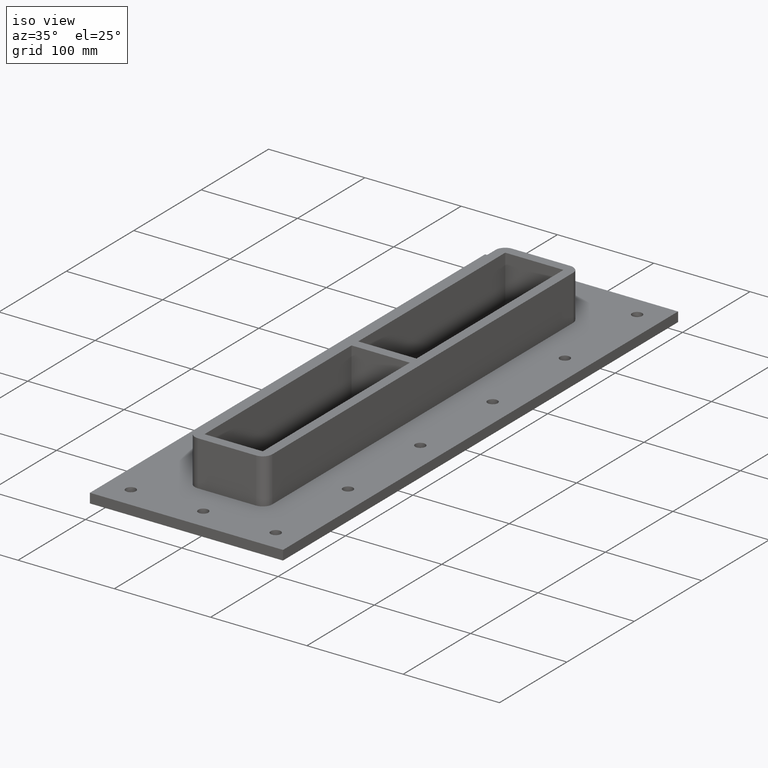
[diagram: clean part render]
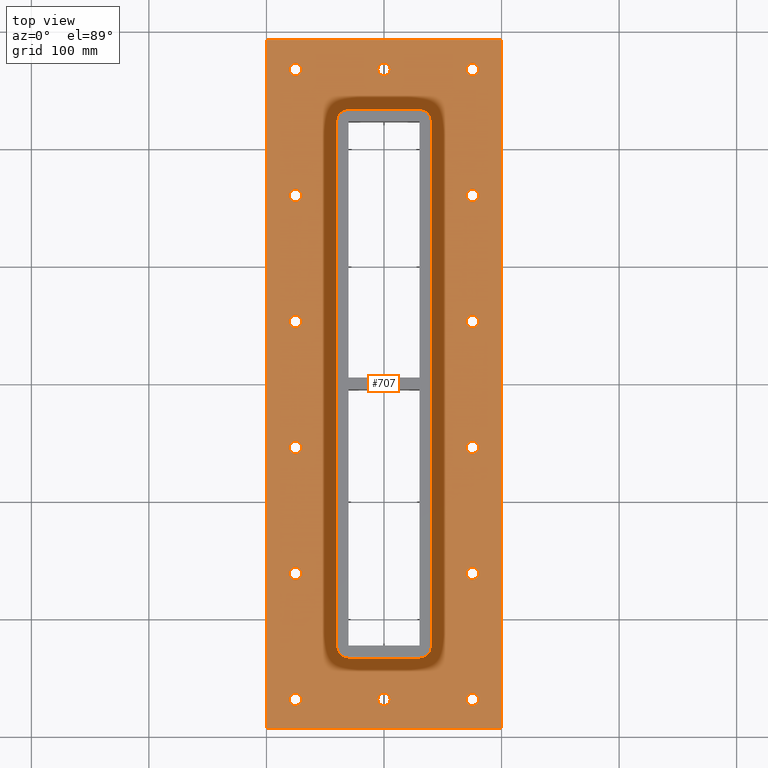
[diagram: tour spotlight — one face highlighted and labeled with its STEP entity id]
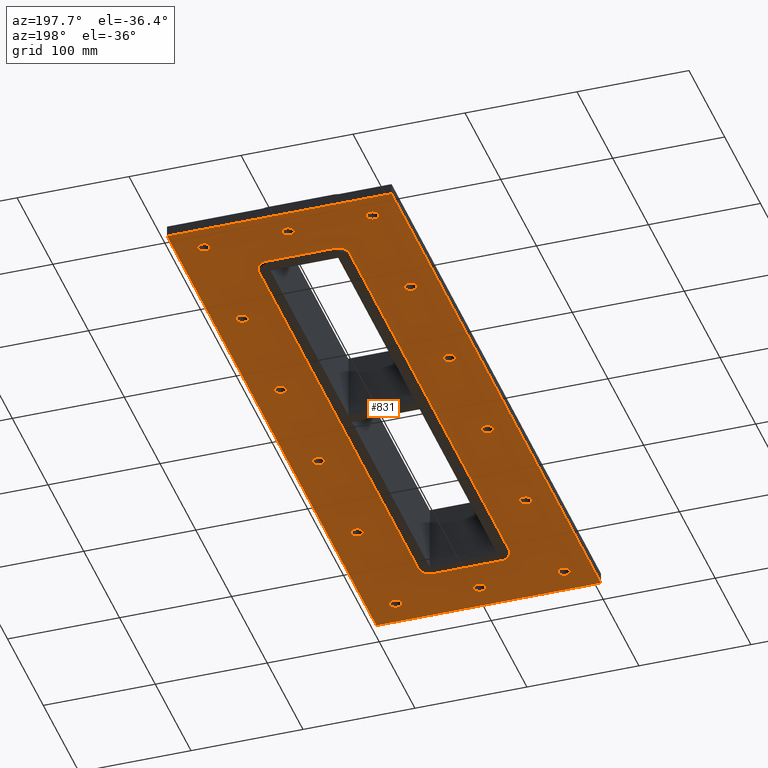
[diagram: tour spotlight — one face highlighted and labeled with its STEP entity id]
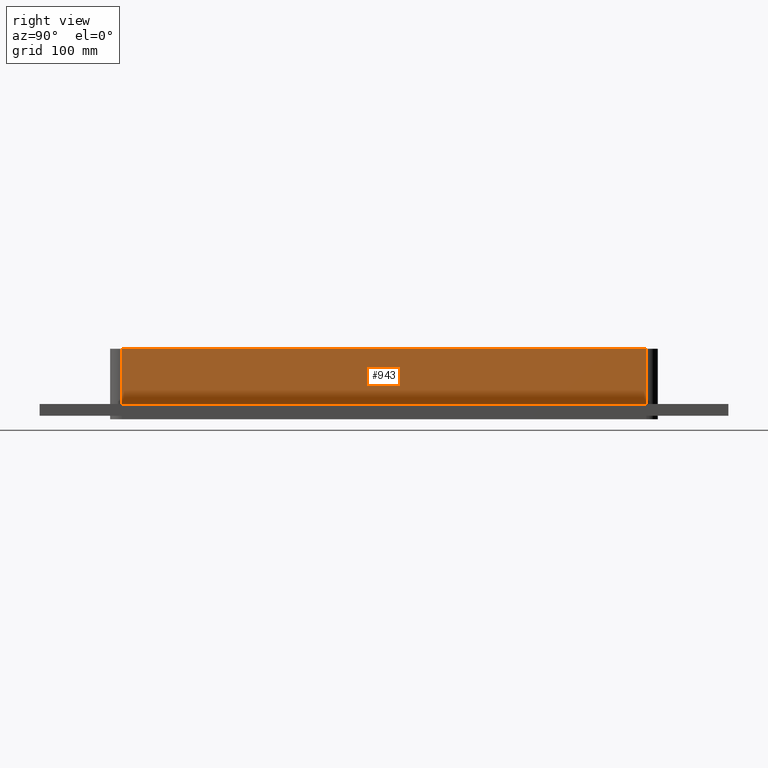
[diagram: tour spotlight — one face highlighted and labeled with its STEP entity id]
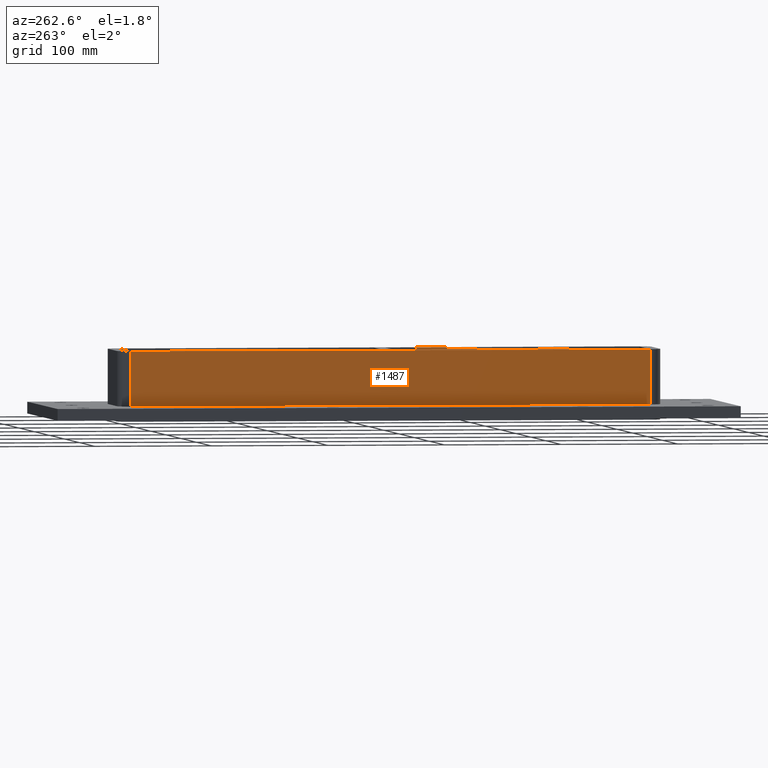
[diagram: tour spotlight — one face highlighted and labeled with its STEP entity id]
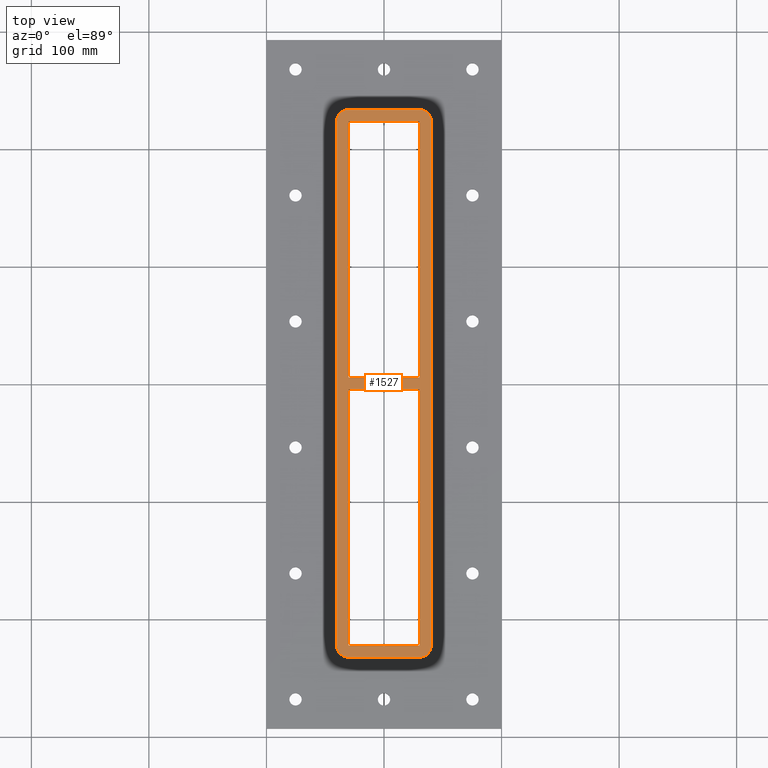
[diagram: tour spotlight — one face highlighted and labeled with its STEP entity id]
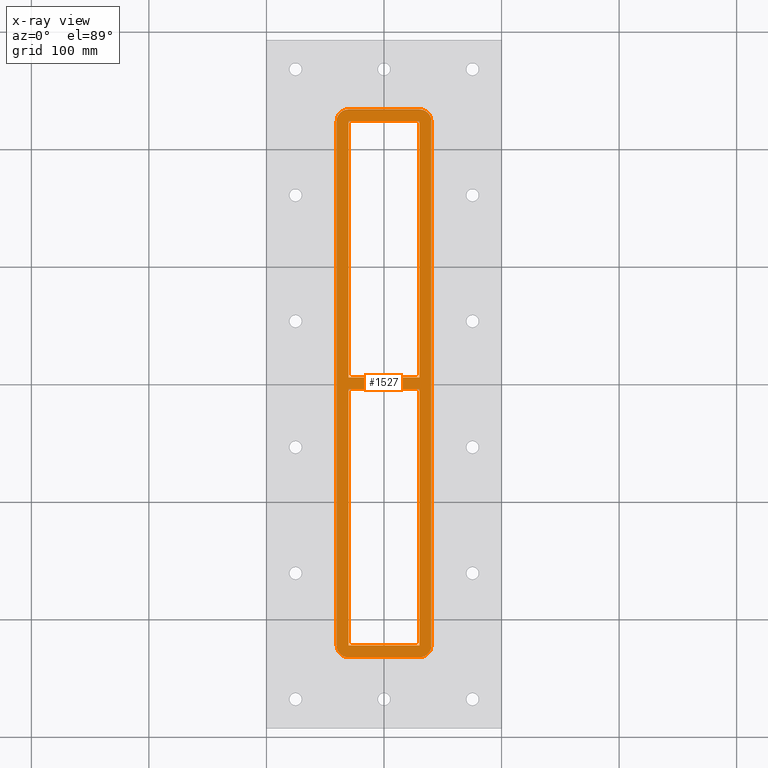
[diagram: x-ray of the same camera — body ghosted, this tour face saturated]
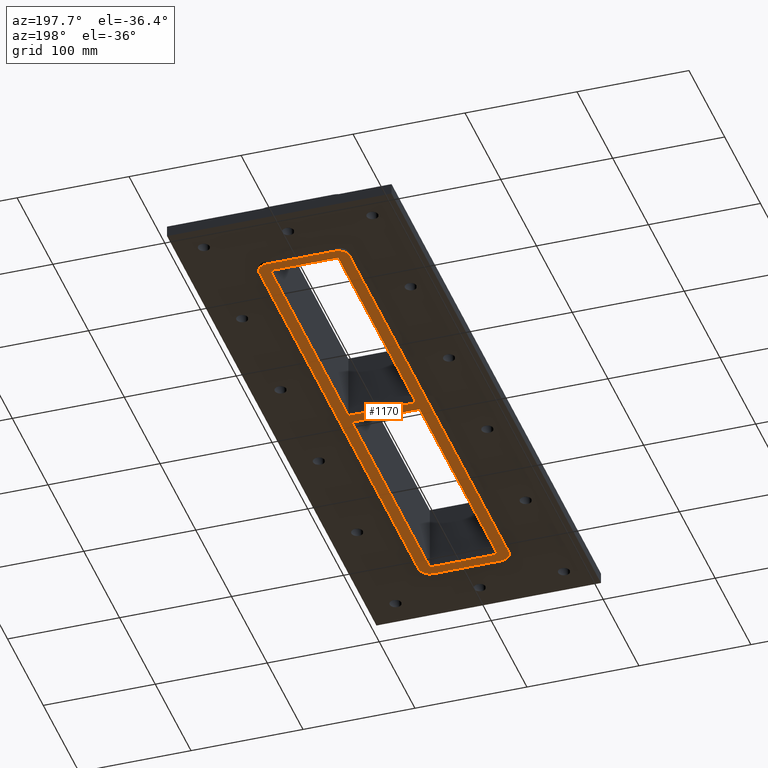
[diagram: tour spotlight — one face highlighted and labeled with its STEP entity id]
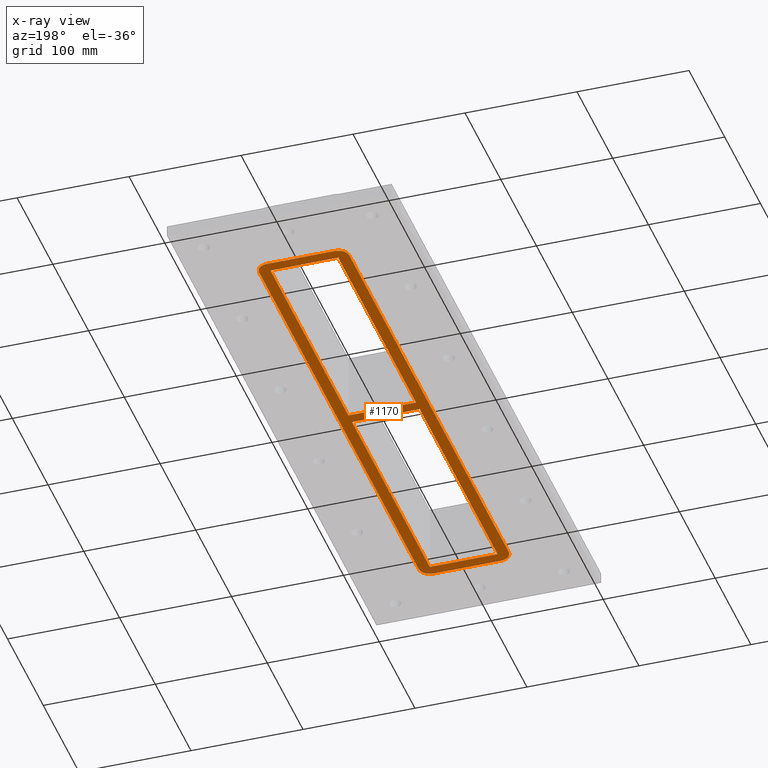
[diagram: x-ray of the same camera — body ghosted, this tour face saturated]
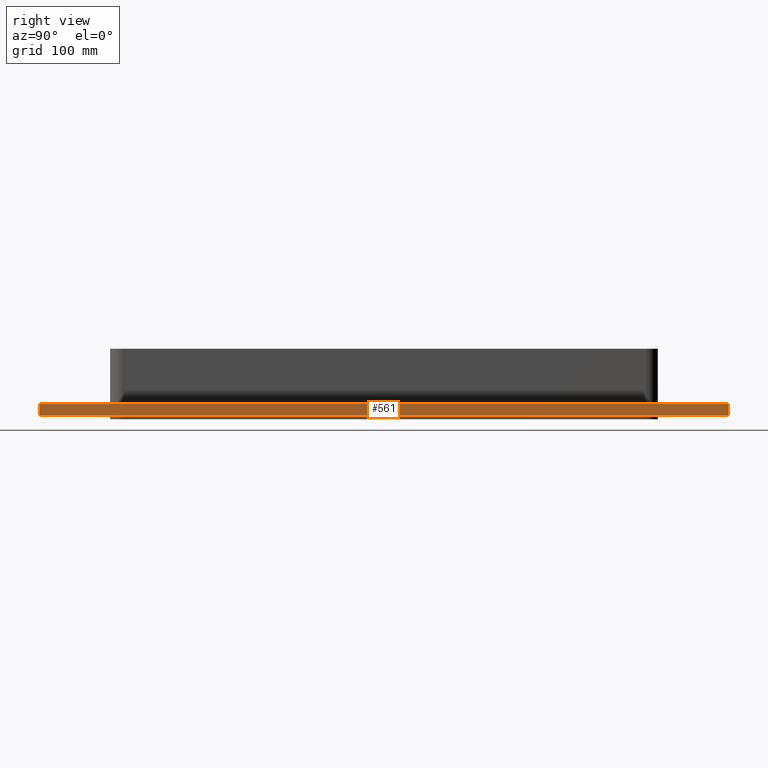
[diagram: tour spotlight — one face highlighted and labeled with its STEP entity id]
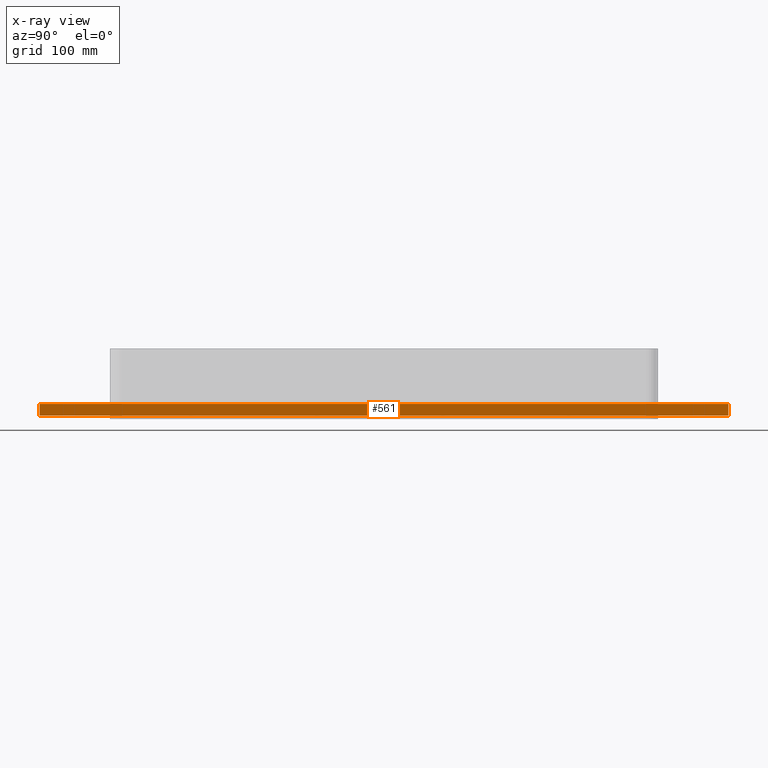
[diagram: x-ray of the same camera — body ghosted, this tour face saturated]
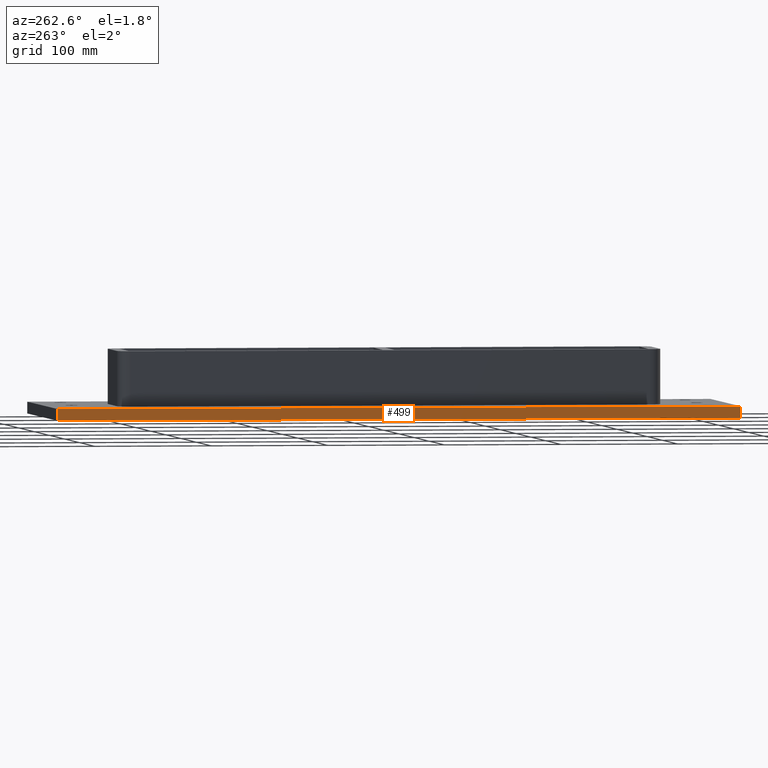
[diagram: tour spotlight — one face highlighted and labeled with its STEP entity id]
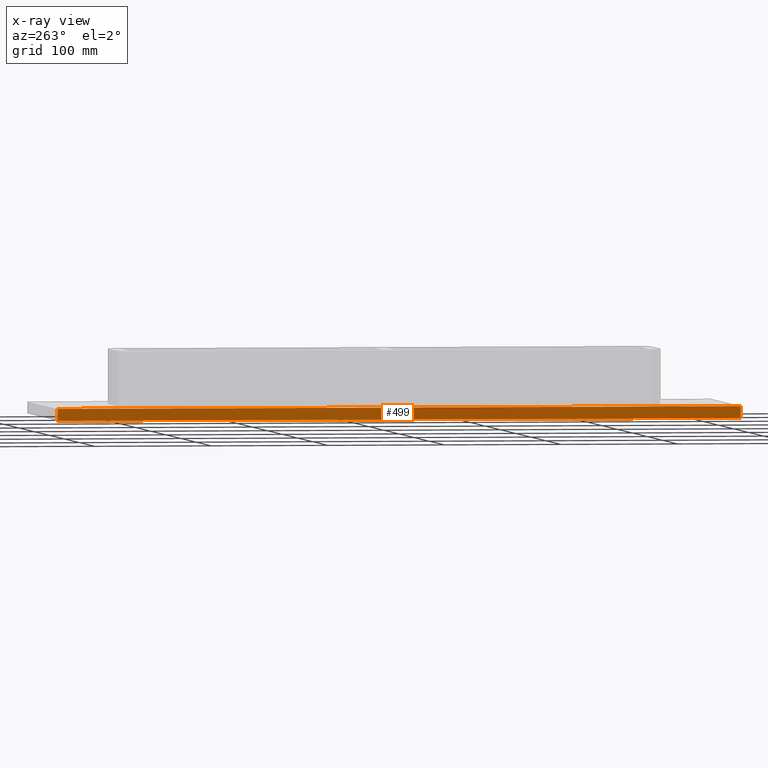
[diagram: x-ray of the same camera — body ghosted, this tour face saturated]
A machine part: a face-by-face anatomy tour. The part has 46 B-rep faces; the first image is the clean iso view, then the 8 largest visible faces are spotlighted one at a time (largest first), each with its STEP entity span.

Face 1 — top view, entity #707. In plain terms, the highlighted planar face has unit normal (0, 0, 1).
Definition (entity closure, byte-faithful):
#84=CARTESIAN_POINT('',(5.250000000000066,-268.0,-17.0));
#85=VERTEX_POINT('',#84);
#86=CARTESIAN_POINT('',(6.217249E-014,-268.0,-17.000000000000028));
#87=DIRECTION('',(0.0,0.0,-1.0));
#88=DIRECTION('',(1.0,0.0,0.0));
#89=AXIS2_PLACEMENT_3D('',#86,#87,#88);
#90=CIRCLE('',#89,5.25);
#91=EDGE_CURVE('',#85,#85,#90,.T.);
#112=CARTESIAN_POINT('',(5.249999999999959,268.0,-17.0));
#113=VERTEX_POINT('',#112);
#114=CARTESIAN_POINT('',(-4.440892E-014,268.0,-17.000000000000028));
#115=DIRECTION('',(0.0,0.0,-1.0));
#116=DIRECTION('',(1.0,0.0,0.0));
#117=AXIS2_PLACEMENT_3D('',#114,#115,#116);
#118=CIRCLE('',#117,5.25);
#119=EDGE_CURVE('',#113,#113,#118,.T.);
#140=CARTESIAN_POINT('',(80.500000000000043,-160.80000000000007,-17.0));
#141=VERTEX_POINT('',#140);
#142=CARTESIAN_POINT('',(75.250000000000028,-160.80000000000007,-17.000000000000028));
#143=DIRECTION('',(0.0,0.0,-1.0));
#144=DIRECTION('',(1.0,0.0,0.0));
#145=AXIS2_PLACEMENT_3D('',#142,#143,#144);
#146=CIRCLE('',#145,5.25);
#147=EDGE_CURVE('',#141,#141,#146,.T.);
#168=CARTESIAN_POINT('',(80.500000000000028,-53.600000000000051,-17.0));
#169=VERTEX_POINT('',#168);
#170=CARTESIAN_POINT('',(75.250000000000028,-53.600000000000051,-17.000000000000028));
#171=DIRECTION('',(0.0,0.0,-1.0));
#172=DIRECTION('',(1.0,0.0,0.0));
#173=AXIS2_PLACEMENT_3D('',#170,#171,#172);
#174=CIRCLE('',#173,5.25);
#175=EDGE_CURVE('',#169,#169,#174,.T.);
#196=CARTESIAN_POINT('',(80.5,53.59999999999998,-17.0));
#197=VERTEX_POINT('',#196);
#198=CARTESIAN_POINT('',(75.25,53.59999999999998,-17.000000000000028));
#199=DIRECTION('',(0.0,0.0,-1.0));
#200=DIRECTION('',(1.0,0.0,0.0));
#201=AXIS2_PLACEMENT_3D('',#198,#199,#200);
#202=CIRCLE('',#201,5.25);
#203=EDGE_CURVE('',#197,#197,#202,.T.);
#224=CARTESIAN_POINT('',(80.499999999999986,160.79999999999998,-17.0));
#225=VERTEX_POINT('',#224);
#226=CARTESIAN_POINT('',(75.249999999999986,160.79999999999998,-17.000000000000028));
#227=DIRECTION('',(0.0,0.0,-1.0));
#228=DIRECTION('',(1.0,0.0,0.0));
#229=AXIS2_PLACEMENT_3D('',#226,#227,#228);
#230=CIRCLE('',#229,5.25);
#231=EDGE_CURVE('',#225,#225,#230,.T.);
#252=CARTESIAN_POINT('',(-70.000000000000028,160.80000000000007,-17.0));
#253=VERTEX_POINT('',#252);
#254=CARTESIAN_POINT('',(-75.250000000000043,160.80000000000007,-17.000000000000028));
#255=DIRECTION('',(0.0,0.0,-1.0));
#256=DIRECTION('',(1.0,0.0,0.0));
#257=AXIS2_PLACEMENT_3D('',#254,#255,#256);
#258=CIRCLE('',#257,5.25);
#259=EDGE_CURVE('',#253,#253,#258,.T.);
#280=CARTESIAN_POINT('',(-70.000000000000014,53.600000000000051,-17.0));
#281=VERTEX_POINT('',#280);
#282=CARTESIAN_POINT('',(-75.250000000000014,53.600000000000051,-17.000000000000028));
#283=DIRECTION('',(0.0,0.0,-1.0));
#284=DIRECTION('',(1.0,0.0,0.0));
#285=AXIS2_PLACEMENT_3D('',#282,#283,#284);
#286=CIRCLE('',#285,5.25);
#287=EDGE_CURVE('',#281,#281,#286,.T.);
#308=CARTESIAN_POINT('',(-69.999999999999986,-53.59999999999998,-17.0));
#309=VERTEX_POINT('',#308);
#310=CARTESIAN_POINT('',(-75.25,-53.59999999999998,-17.000000000000028));
#311=DIRECTION('',(0.0,0.0,-1.0));
#312=DIRECTION('',(1.0,0.0,0.0));
#313=AXIS2_PLACEMENT_3D('',#310,#311,#312);
#314=CIRCLE('',#313,5.25);
#315=EDGE_CURVE('',#309,#309,#314,.T.);
#336=CARTESIAN_POINT('',(-69.999999999999972,-160.79999999999998,-17.0));
#337=VERTEX_POINT('',#336);
#338=CARTESIAN_POINT('',(-75.249999999999972,-160.79999999999998,-17.000000000000028));
#339=DIRECTION('',(0.0,0.0,-1.0));
#340=DIRECTION('',(1.0,0.0,0.0));
#341=AXIS2_PLACEMENT_3D('',#338,#339,#340);
#342=CIRCLE('',#341,5.25);
#343=EDGE_CURVE('',#337,#337,#342,.T.);
#364=CARTESIAN_POINT('',(-70.000000000000043,268.0,-17.0));
#365=VERTEX_POINT('',#364);
#366=CARTESIAN_POINT('',(-75.250000000000043,268.0,-17.000000000000028));
#367=DIRECTION('',(0.0,0.0,-1.0));
#368=DIRECTION('',(1.0,0.0,0.0));
#369=AXIS2_PLACEMENT_3D('',#366,#367,#368);
#370=CIRCLE('',#369,5.25);
#371=EDGE_CURVE('',#365,#365,#370,.T.);
#392=CARTESIAN_POINT('',(80.499999999999972,268.0,-17.0));
#393=VERTEX_POINT('',#392);
#394=CARTESIAN_POINT('',(75.249999999999972,268.0,-17.000000000000028));
#395=DIRECTION('',(0.0,0.0,-1.0));
#396=DIRECTION('',(1.0,0.0,0.0));
#397=AXIS2_PLACEMENT_3D('',#394,#395,#396);
#398=CIRCLE('',#397,5.25);
#399=EDGE_CURVE('',#393,#393,#398,.T.);
#420=CARTESIAN_POINT('',(80.500000000000057,-268.0,-17.0));
#421=VERTEX_POINT('',#420);
#422=CARTESIAN_POINT('',(75.250000000000057,-268.0,-17.000000000000028));
#423=DIRECTION('',(0.0,0.0,-1.0));
#424=DIRECTION('',(1.0,0.0,0.0));
#425=AXIS2_PLACEMENT_3D('',#422,#423,#424);
#426=CIRCLE('',#425,5.25);
#427=EDGE_CURVE('',#421,#421,#426,.T.);
#448=CARTESIAN_POINT('',(-69.999999999999957,-268.0,-17.0));
#449=VERTEX_POINT('',#448);
#450=CARTESIAN_POINT('',(-75.249999999999957,-268.0,-17.000000000000028));
#451=DIRECTION('',(0.0,0.0,-1.0));
#452=DIRECTION('',(1.0,0.0,0.0));
#453=AXIS2_PLACEMENT_3D('',#450,#451,#452);
#454=CIRCLE('',#453,5.25);
#455=EDGE_CURVE('',#449,#449,#454,.T.);
#475=CARTESIAN_POINT('',(-100.24999999999994,-293.0,-17.0));
#476=VERTEX_POINT('',#475);
#483=CARTESIAN_POINT('',(-100.25000000000006,293.0,-17.0));
#484=VERTEX_POINT('',#483);
#485=CARTESIAN_POINT('',(-100.25000000000003,293.0,-17.0));
#486=DIRECTION('',(0.0,-1.0,0.0));
#487=VECTOR('',#486,586.0);
#488=LINE('',#485,#487);
#489=EDGE_CURVE('',#484,#476,#488,.T.);
#514=CARTESIAN_POINT('',(100.24999999999997,293.0,-17.0));
#515=VERTEX_POINT('',#514);
#516=CARTESIAN_POINT('',(100.24999999999996,293.0,-17.0));
#517=DIRECTION('',(-1.0,0.0,0.0));
#518=VECTOR('',#517,200.5);
#519=LINE('',#516,#518);
#520=EDGE_CURVE('',#515,#484,#519,.T.);
#545=CARTESIAN_POINT('',(100.25000000000006,-293.0,-17.0));
#546=VERTEX_POINT('',#545);
#547=CARTESIAN_POINT('',(100.25000000000006,-293.0,-17.0));
#548=DIRECTION('',(0.0,1.0,0.0));
#549=VECTOR('',#548,586.0);
#550=LINE('',#547,#549);
#551=EDGE_CURVE('',#546,#515,#550,.T.);
#574=CARTESIAN_POINT('',(-100.24999999999994,-293.0,-17.0));
#575=DIRECTION('',(1.0,0.0,0.0));
#576=VECTOR('',#575,200.5);
#577=LINE('',#574,#576);
#578=EDGE_CURVE('',#476,#546,#577,.T.);
#584=CARTESIAN_POINT('',(1.626163E-014,0.0,-17.0));
#585=DIRECTION('',(0.0,0.0,1.0));
#586=DIRECTION('',(1.0,0.0,0.0));
#587=AXIS2_PLACEMENT_3D('',#584,#585,#586);
#588=PLANE('',#587);
#589=ORIENTED_EDGE('',*,*,#578,.T.);
#590=ORIENTED_EDGE('',*,*,#551,.T.);
#591=ORIENTED_EDGE('',*,*,#520,.T.);
#592=ORIENTED_EDGE('',*,*,#489,.T.);
#593=EDGE_LOOP('',(#589,#590,#591,#592));
#594=FACE_OUTER_BOUND('',#593,.T.);
#595=ORIENTED_EDGE('',*,*,#91,.T.);
#596=EDGE_LOOP('',(#595));
#597=FACE_BOUND('',#596,.T.);
#598=ORIENTED_EDGE('',*,*,#119,.T.);
#599=EDGE_LOOP('',(#598));
#600=FACE_BOUND('',#599,.T.);
#601=ORIENTED_EDGE('',*,*,#147,.T.);
#602=EDGE_LOOP('',(#601));
#603=FACE_BOUND('',#602,.T.);
#604=ORIENTED_EDGE('',*,*,#175,.T.);
#605=EDGE_LOOP('',(#604));
#606=FACE_BOUND('',#605,.T.);
#607=ORIENTED_EDGE('',*,*,#203,.T.);
#608=EDGE_LOOP('',(#607));
#609=FACE_BOUND('',#608,.T.);
#610=ORIENTED_EDGE('',*,*,#231,.T.);
#611=EDGE_LOOP('',(#610));
#612=FACE_BOUND('',#611,.T.);
#613=ORIENTED_EDGE('',*,*,#259,.T.);
#614=EDGE_LOOP('',(#613));
#615=FACE_BOUND('',#614,.T.);
#616=ORIENTED_EDGE('',*,*,#287,.T.);
#617=EDGE_LOOP('',(#616));
#618=FACE_BOUND('',#617,.T.);
#619=ORIENTED_EDGE('',*,*,#315,.T.);
#620=EDGE_LOOP('',(#619));
#621=FACE_BOUND('',#620,.T.);
#622=ORIENTED_EDGE('',*,*,#343,.T.);
#623=EDGE_LOOP('',(#622));
#624=FACE_BOUND('',#623,.T.);
#625=ORIENTED_EDGE('',*,*,#371,.T.);
#626=EDGE_LOOP('',(#625));
#627=FACE_BOUND('',#626,.T.);
#628=ORIENTED_EDGE('',*,*,#399,.T.);
#629=EDGE_LOOP('',(#628));
#630=FACE_BOUND('',#629,.T.);
#631=ORIENTED_EDGE('',*,*,#427,.T.);
#632=EDGE_LOOP('',(#631));
#633=FACE_BOUND('',#632,.T.);
#634=ORIENTED_EDGE('',*,*,#455,.T.);
#635=EDGE_LOOP('',(#634));
#636=FACE_BOUND('',#635,.T.);
#637=CARTESIAN_POINT('',(40.249999999999972,223.0,-17.0));
#638=VERTEX_POINT('',#637);
#639=CARTESIAN_POINT('',(30.249999999999982,233.00000000000006,-17.0));
#640=VERTEX_POINT('',#639);
#641=CARTESIAN_POINT('',(30.249999999999922,223.00000000000017,-17.0));
#642=DIRECTION('',(0.0,0.0,1.0));
#643=DIRECTION('',(0.707106781186547,0.707106781186547,0.0));
#644=AXIS2_PLACEMENT_3D('',#641,#642,#643);
#645=CIRCLE('',#644,9.999999999999998);
#646=EDGE_CURVE('',#638,#640,#645,.T.);
#647=ORIENTED_EDGE('',*,*,#646,.F.);
#648=CARTESIAN_POINT('',(40.250000000000057,-223.00000000000006,-17.0));
#649=VERTEX_POINT('',#648);
#650=CARTESIAN_POINT('',(40.250000000000021,-223.00000000000006,-17.0));
#651=DIRECTION('',(0.0,1.0,0.0));
#652=VECTOR('',#651,446.0);
#653=LINE('',#650,#652);
#654=EDGE_CURVE('',#649,#638,#653,.T.);
#655=ORIENTED_EDGE('',*,*,#654,.F.);
#656=CARTESIAN_POINT('',(30.250000000000043,-232.99999999999997,-17.0));
#657=VERTEX_POINT('',#656);
#658=CARTESIAN_POINT('',(30.250000000000021,-222.99999999999983,-17.0));
#659=DIRECTION('',(0.0,0.0,1.0));
#660=DIRECTION('',(0.707106781186547,-0.707106781186547,0.0));
#661=AXIS2_PLACEMENT_3D('',#658,#659,#660);
#662=CIRCLE('',#661,9.999999999999998);
#663=EDGE_CURVE('',#657,#649,#662,.T.);
#664=ORIENTED_EDGE('',*,*,#663,.F.);
#665=CARTESIAN_POINT('',(-30.249999999999972,-233.00000000000006,-17.0));
#666=VERTEX_POINT('',#665);
#667=CARTESIAN_POINT('',(-30.249999999999972,-232.99999999999983,-17.0));
#668=DIRECTION('',(1.0,0.0,0.0));
#669=VECTOR('',#668,60.500000000000014);
#670=LINE('',#667,#669);
#671=EDGE_CURVE('',#666,#657,#670,.T.);
#672=ORIENTED_EDGE('',*,*,#671,.F.);
#673=CARTESIAN_POINT('',(-40.249999999999986,-223.00000000000006,-17.0));
#674=VERTEX_POINT('',#673);
#675=CARTESIAN_POINT('',(-30.249999999999947,-222.99999999999983,-17.0));
#676=DIRECTION('',(0.0,0.0,1.0));
#677=DIRECTION('',(-0.707106781186547,-0.707106781186548,0.0));
#678=AXIS2_PLACEMENT_3D('',#675,#676,#677);
#679=CIRCLE('',#678,9.999999999999998);
#680=EDGE_CURVE('',#674,#666,#679,.T.);
#681=ORIENTED_EDGE('',*,*,#680,.F.);
#682=CARTESIAN_POINT('',(-40.250000000000021,223.0,-17.0));
#683=VERTEX_POINT('',#682);
#684=CARTESIAN_POINT('',(-40.250000000000085,223.0,-17.0));
#685=DIRECTION('',(0.0,-1.0,0.0));
#686=VECTOR('',#685,446.00000000000006);
#687=LINE('',#684,#686);
#688=EDGE_CURVE('',#683,#674,#687,.T.);
#689=ORIENTED_EDGE('',*,*,#688,.F.);
#690=CARTESIAN_POINT('',(-30.250000000000036,233.00000000000006,-17.0));
#691=VERTEX_POINT('',#690);
#692=CARTESIAN_POINT('',(-30.250000000000075,223.00000000000017,-17.0));
#693=DIRECTION('',(0.0,0.0,1.0));
#694=DIRECTION('',(-0.707106781186548,0.707106781186547,0.0));
#695=AXIS2_PLACEMENT_3D('',#692,#693,#694);
#696=CIRCLE('',#695,10.0);
#697=EDGE_CURVE('',#691,#683,#696,.T.);
#698=ORIENTED_EDGE('',*,*,#697,.F.);
#699=CARTESIAN_POINT('',(30.249999999999982,233.00000000000017,-17.0));
#700=DIRECTION('',(-1.0,0.0,0.0));
#701=VECTOR('',#700,60.500000000000014);
#702=LINE('',#699,#701);
#703=EDGE_CURVE('',#640,#691,#702,.T.);
#704=ORIENTED_EDGE('',*,*,#703,.F.);
#705=EDGE_LOOP('',(#647,#655,#664,#672,#681,#689,#698,#704));
#706=FACE_BOUND('',#705,.T.);
#707=ADVANCED_FACE('',(#594,#597,#600,#603,#606,#609,#612,#615,#618,#621,#624,#627,#630,#633,#636,#706),#588,.T.);

Face 2 — auxiliary view, entity #831. In plain terms, the highlighted planar face has unit normal (0, 0, 1).
Definition (entity closure, byte-faithful):
#73=CARTESIAN_POINT('',(-5.249999999999941,-268.0,-27.000000000000028));
#74=VERTEX_POINT('',#73);
#75=CARTESIAN_POINT('',(6.217249E-014,-268.0,-27.000000000000028));
#76=DIRECTION('',(0.0,0.0,1.0));
#77=DIRECTION('',(1.0,0.0,0.0));
#78=AXIS2_PLACEMENT_3D('',#75,#76,#77);
#79=CIRCLE('',#78,5.25);
#80=EDGE_CURVE('',#74,#74,#79,.T.);
#101=CARTESIAN_POINT('',(-5.250000000000039,268.0,-27.000000000000028));
#102=VERTEX_POINT('',#101);
#103=CARTESIAN_POINT('',(-4.440892E-014,268.0,-27.000000000000028));
#104=DIRECTION('',(0.0,0.0,1.0));
#105=DIRECTION('',(1.0,0.0,0.0));
#106=AXIS2_PLACEMENT_3D('',#103,#104,#105);
#107=CIRCLE('',#106,5.25);
#108=EDGE_CURVE('',#102,#102,#107,.T.);
#129=CARTESIAN_POINT('',(70.000000000000028,-160.80000000000007,-27.000000000000028));
#130=VERTEX_POINT('',#129);
#131=CARTESIAN_POINT('',(75.250000000000028,-160.80000000000007,-27.000000000000028));
#132=DIRECTION('',(0.0,0.0,1.0));
#133=DIRECTION('',(1.0,0.0,0.0));
#134=AXIS2_PLACEMENT_3D('',#131,#132,#133);
#135=CIRCLE('',#134,5.25);
#136=EDGE_CURVE('',#130,#130,#135,.T.);
#157=CARTESIAN_POINT('',(70.000000000000014,-53.600000000000051,-27.000000000000028));
#158=VERTEX_POINT('',#157);
#159=CARTESIAN_POINT('',(75.250000000000028,-53.600000000000051,-27.000000000000028));
#160=DIRECTION('',(0.0,0.0,1.0));
#161=DIRECTION('',(1.0,0.0,0.0));
#162=AXIS2_PLACEMENT_3D('',#159,#160,#161);
#163=CIRCLE('',#162,5.25);
#164=EDGE_CURVE('',#158,#158,#163,.T.);
#185=CARTESIAN_POINT('',(70.0,53.59999999999998,-27.000000000000028));
#186=VERTEX_POINT('',#185);
#187=CARTESIAN_POINT('',(75.25,53.59999999999998,-27.000000000000028));
#188=DIRECTION('',(0.0,0.0,1.0));
#189=DIRECTION('',(1.0,0.0,0.0));
#190=AXIS2_PLACEMENT_3D('',#187,#188,#189);
#191=CIRCLE('',#190,5.25);
#192=EDGE_CURVE('',#186,#186,#191,.T.);
#213=CARTESIAN_POINT('',(69.999999999999986,160.79999999999998,-27.000000000000028));
#214=VERTEX_POINT('',#213);
#215=CARTESIAN_POINT('',(75.249999999999986,160.79999999999998,-27.000000000000028));
#216=DIRECTION('',(0.0,0.0,1.0));
#217=DIRECTION('',(1.0,0.0,0.0));
#218=AXIS2_PLACEMENT_3D('',#215,#216,#217);
#219=CIRCLE('',#218,5.25);
#220=EDGE_CURVE('',#214,#214,#219,.T.);
#241=CARTESIAN_POINT('',(-80.500000000000028,160.80000000000007,-27.000000000000028));
#242=VERTEX_POINT('',#241);
#243=CARTESIAN_POINT('',(-75.250000000000043,160.80000000000007,-27.000000000000028));
#244=DIRECTION('',(0.0,0.0,1.0));
#245=DIRECTION('',(1.0,0.0,0.0));
#246=AXIS2_PLACEMENT_3D('',#243,#244,#245);
#247=CIRCLE('',#246,5.25);
#248=EDGE_CURVE('',#242,#242,#247,.T.);
#269=CARTESIAN_POINT('',(-80.5,53.600000000000051,-27.000000000000028));
#270=VERTEX_POINT('',#269);
#271=CARTESIAN_POINT('',(-75.250000000000014,53.600000000000051,-27.000000000000028));
#272=DIRECTION('',(0.0,0.0,1.0));
#273=DIRECTION('',(1.0,0.0,0.0));
#274=AXIS2_PLACEMENT_3D('',#271,#272,#273);
#275=CIRCLE('',#274,5.25);
#276=EDGE_CURVE('',#270,#270,#275,.T.);
#297=CARTESIAN_POINT('',(-80.499999999999986,-53.59999999999998,-27.000000000000028));
#298=VERTEX_POINT('',#297);
#299=CARTESIAN_POINT('',(-75.25,-53.59999999999998,-27.000000000000028));
#300=DIRECTION('',(0.0,0.0,1.0));
#301=DIRECTION('',(1.0,0.0,0.0));
#302=AXIS2_PLACEMENT_3D('',#299,#300,#301);
#303=CIRCLE('',#302,5.25);
#304=EDGE_CURVE('',#298,#298,#303,.T.);
#325=CARTESIAN_POINT('',(-80.499999999999972,-160.79999999999998,-27.000000000000028));
#326=VERTEX_POINT('',#325);
#327=CARTESIAN_POINT('',(-75.249999999999972,-160.79999999999998,-27.000000000000028));
#328=DIRECTION('',(0.0,0.0,1.0));
#329=DIRECTION('',(1.0,0.0,0.0));
#330=AXIS2_PLACEMENT_3D('',#327,#328,#329);
#331=CIRCLE('',#330,5.25);
#332=EDGE_CURVE('',#326,#326,#331,.T.);
#353=CARTESIAN_POINT('',(-80.500000000000043,268.0,-27.000000000000028));
#354=VERTEX_POINT('',#353);
#355=CARTESIAN_POINT('',(-75.250000000000043,268.0,-27.000000000000028));
#356=DIRECTION('',(0.0,0.0,1.0));
#357=DIRECTION('',(1.0,0.0,0.0));
#358=AXIS2_PLACEMENT_3D('',#355,#356,#357);
#359=CIRCLE('',#358,5.25);
#360=EDGE_CURVE('',#354,#354,#359,.T.);
#381=CARTESIAN_POINT('',(69.999999999999972,268.0,-27.000000000000028));
#382=VERTEX_POINT('',#381);
#383=CARTESIAN_POINT('',(75.249999999999972,268.0,-27.000000000000028));
#384=DIRECTION('',(0.0,0.0,1.0));
#385=DIRECTION('',(1.0,0.0,0.0));
#386=AXIS2_PLACEMENT_3D('',#383,#384,#385);
#387=CIRCLE('',#386,5.25);
#388=EDGE_CURVE('',#382,#382,#387,.T.);
#409=CARTESIAN_POINT('',(70.000000000000057,-268.0,-27.000000000000028));
#410=VERTEX_POINT('',#409);
#411=CARTESIAN_POINT('',(75.250000000000057,-268.0,-27.000000000000028));
#412=DIRECTION('',(0.0,0.0,1.0));
#413=DIRECTION('',(1.0,0.0,0.0));
#414=AXIS2_PLACEMENT_3D('',#411,#412,#413);
#415=CIRCLE('',#414,5.25);
#416=EDGE_CURVE('',#410,#410,#415,.T.);
#437=CARTESIAN_POINT('',(-80.499999999999957,-268.0,-27.000000000000028));
#438=VERTEX_POINT('',#437);
#439=CARTESIAN_POINT('',(-75.249999999999957,-268.0,-27.000000000000028));
#440=DIRECTION('',(0.0,0.0,1.0));
#441=DIRECTION('',(1.0,0.0,0.0));
#442=AXIS2_PLACEMENT_3D('',#439,#440,#441);
#443=CIRCLE('',#442,5.25);
#444=EDGE_CURVE('',#438,#438,#443,.T.);
#465=CARTESIAN_POINT('',(-100.24999999999994,-293.0,-27.0));
#466=VERTEX_POINT('',#465);
#467=CARTESIAN_POINT('',(-100.25000000000004,293.0,-27.0));
#468=VERTEX_POINT('',#467);
#469=CARTESIAN_POINT('',(-100.24999999999994,-293.0,-27.0));
#470=DIRECTION('',(0.0,1.0,0.0));
#471=VECTOR('',#470,586.0);
#472=LINE('',#469,#471);
#473=EDGE_CURVE('',#466,#468,#472,.T.);
#505=CARTESIAN_POINT('',(100.24999999999997,293.0,-27.0));
#506=VERTEX_POINT('',#505);
#507=CARTESIAN_POINT('',(-100.25000000000004,293.0,-27.0));
#508=DIRECTION('',(1.0,0.0,0.0));
#509=VECTOR('',#508,200.5);
#510=LINE('',#507,#509);
#511=EDGE_CURVE('',#468,#506,#510,.T.);
#536=CARTESIAN_POINT('',(100.25000000000006,-293.0,-27.0));
#537=VERTEX_POINT('',#536);
#538=CARTESIAN_POINT('',(100.24999999999997,293.0,-27.0));
#539=DIRECTION('',(0.0,-1.0,0.0));
#540=VECTOR('',#539,586.0);
#541=LINE('',#538,#540);
#542=EDGE_CURVE('',#506,#537,#541,.T.);
#567=CARTESIAN_POINT('',(100.25000000000006,-293.0,-27.0));
#568=DIRECTION('',(-1.0,0.0,0.0));
#569=VECTOR('',#568,200.5);
#570=LINE('',#567,#569);
#571=EDGE_CURVE('',#537,#466,#570,.T.);
#708=CARTESIAN_POINT('',(1.626163E-014,0.0,-27.0));
#709=DIRECTION('',(0.0,0.0,1.0));
#710=DIRECTION('',(1.0,0.0,0.0));
#711=AXIS2_PLACEMENT_3D('',#708,#709,#710);
#712=PLANE('',#711);
#713=ORIENTED_EDGE('',*,*,#571,.T.);
#714=ORIENTED_EDGE('',*,*,#473,.T.);
#715=ORIENTED_EDGE('',*,*,#511,.T.);
#716=ORIENTED_EDGE('',*,*,#542,.T.);
#717=EDGE_LOOP('',(#713,#714,#715,#716));
#718=FACE_OUTER_BOUND('',#717,.T.);
#719=ORIENTED_EDGE('',*,*,#80,.T.);
#720=EDGE_LOOP('',(#719));
#721=FACE_BOUND('',#720,.T.);
#722=ORIENTED_EDGE('',*,*,#108,.T.);
#723=EDGE_LOOP('',(#722));
#724=FACE_BOUND('',#723,.T.);
#725=ORIENTED_EDGE('',*,*,#136,.T.);
#726=EDGE_LOOP('',(#725));
#727=FACE_BOUND('',#726,.T.);
#728=ORIENTED_EDGE('',*,*,#164,.T.);
#729=EDGE_LOOP('',(#728));
#730=FACE_BOUND('',#729,.T.);
#731=ORIENTED_EDGE('',*,*,#192,.T.);
#732=EDGE_LOOP('',(#731));
#733=FACE_BOUND('',#732,.T.);
#734=ORIENTED_EDGE('',*,*,#220,.T.);
#735=EDGE_LOOP('',(#734));
#736=FACE_BOUND('',#735,.T.);
#737=ORIENTED_EDGE('',*,*,#248,.T.);
#738=EDGE_LOOP('',(#737));
#739=FACE_BOUND('',#738,.T.);
#740=ORIENTED_EDGE('',*,*,#276,.T.);
#741=EDGE_LOOP('',(#740));
#742=FACE_BOUND('',#741,.T.);
#743=ORIENTED_EDGE('',*,*,#304,.T.);
#744=EDGE_LOOP('',(#743));
#745=FACE_BOUND('',#744,.T.);
#746=ORIENTED_EDGE('',*,*,#332,.T.);
#747=EDGE_LOOP('',(#746));
#748=FACE_BOUND('',#747,.T.);
#749=ORIENTED_EDGE('',*,*,#360,.T.);
#750=EDGE_LOOP('',(#749));
#751=FACE_BOUND('',#750,.T.);
#752=ORIENTED_EDGE('',*,*,#388,.T.);
#753=EDGE_LOOP('',(#752));
#754=FACE_BOUND('',#753,.T.);
#755=ORIENTED_EDGE('',*,*,#416,.T.);
#756=EDGE_LOOP('',(#755));
#757=FACE_BOUND('',#756,.T.);
#758=ORIENTED_EDGE('',*,*,#444,.T.);
#759=EDGE_LOOP('',(#758));
#760=FACE_BOUND('',#759,.T.);
#761=CARTESIAN_POINT('',(30.249999999999982,233.00000000000006,-27.0));
#762=VERTEX_POINT('',#761);
#763=CARTESIAN_POINT('',(40.249999999999972,223.0,-27.0));
#764=VERTEX_POINT('',#763);
#765=CARTESIAN_POINT('',(30.249999999999922,223.00000000000017,-27.0));
#766=DIRECTION('',(0.0,0.0,-1.0));
#767=DIRECTION('',(0.707106781186547,0.707106781186547,0.0));
#768=AXIS2_PLACEMENT_3D('',#765,#766,#767);
#769=CIRCLE('',#768,9.999999999999998);
#770=EDGE_CURVE('',#762,#764,#769,.T.);
#771=ORIENTED_EDGE('',*,*,#770,.F.);
#772=CARTESIAN_POINT('',(-30.250000000000036,233.00000000000006,-27.0));
#773=VERTEX_POINT('',#772);
#774=CARTESIAN_POINT('',(-30.250000000000032,233.00000000000014,-27.0));
#775=DIRECTION('',(1.0,0.0,0.0));
#776=VECTOR('',#775,60.500000000000014);
#777=LINE('',#774,#776);
#778=EDGE_CURVE('',#773,#762,#777,.T.);
#779=ORIENTED_EDGE('',*,*,#778,.F.);
#780=CARTESIAN_POINT('',(-40.250000000000021,223.0,-27.0));
#781=VERTEX_POINT('',#780);
#782=CARTESIAN_POINT('',(-30.250000000000075,223.00000000000017,-27.0));
#783=DIRECTION('',(0.0,0.0,-1.0));
#784=DIRECTION('',(-0.707106781186548,0.707106781186547,0.0));
#785=AXIS2_PLACEMENT_3D('',#782,#783,#784);
#786=CIRCLE('',#785,10.0);
#787=EDGE_CURVE('',#781,#773,#786,.T.);
#788=ORIENTED_EDGE('',*,*,#787,.F.);
#789=CARTESIAN_POINT('',(-40.249999999999986,-223.0,-27.0));
#790=VERTEX_POINT('',#789);
#791=CARTESIAN_POINT('',(-40.249999999999943,-223.00000000000006,-27.0));
#792=DIRECTION('',(0.0,1.0,0.0));
#793=VECTOR('',#792,446.00000000000006);
#794=LINE('',#791,#793);
#795=EDGE_CURVE('',#790,#781,#794,.T.);
#796=ORIENTED_EDGE('',*,*,#795,.F.);
#797=CARTESIAN_POINT('',(-30.249999999999972,-233.00000000000006,-27.0));
#798=VERTEX_POINT('',#797);
#799=CARTESIAN_POINT('',(-30.249999999999947,-222.99999999999983,-27.0));
#800=DIRECTION('',(0.0,0.0,-1.0));
#801=DIRECTION('',(-0.707106781186547,-0.707106781186548,0.0));
#802=AXIS2_PLACEMENT_3D('',#799,#800,#801);
#803=CIRCLE('',#802,9.999999999999998);
#804=EDGE_CURVE('',#798,#790,#803,.T.);
#805=ORIENTED_EDGE('',*,*,#804,.F.);
#806=CARTESIAN_POINT('',(30.250000000000043,-232.99999999999997,-27.0));
#807=VERTEX_POINT('',#806);
#808=CARTESIAN_POINT('',(30.250000000000046,-232.99999999999983,-27.0));
#809=DIRECTION('',(-1.0,0.0,0.0));
#810=VECTOR('',#809,60.500000000000014);
#811=LINE('',#808,#810);
#812=EDGE_CURVE('',#807,#798,#811,.T.);
#813=ORIENTED_EDGE('',*,*,#812,.F.);
#814=CARTESIAN_POINT('',(40.250000000000057,-223.0,-27.0));
#815=VERTEX_POINT('',#814);
#816=CARTESIAN_POINT('',(30.250000000000021,-222.99999999999983,-27.0));
#817=DIRECTION('',(0.0,0.0,-1.0));
#818=DIRECTION('',(0.707106781186547,-0.707106781186547,0.0));
#819=AXIS2_PLACEMENT_3D('',#816,#817,#818);
#820=CIRCLE('',#819,9.999999999999998);
#821=EDGE_CURVE('',#815,#807,#820,.T.);
#822=ORIENTED_EDGE('',*,*,#821,.F.);
#823=CARTESIAN_POINT('',(40.249999999999929,222.99999999999997,-27.0));
#824=DIRECTION('',(0.0,-1.0,0.0));
#825=VECTOR('',#824,446.0);
#826=LINE('',#823,#825);
#827=EDGE_CURVE('',#764,#815,#826,.T.);
#828=ORIENTED_EDGE('',*,*,#827,.F.);
#829=EDGE_LOOP('',(#771,#779,#788,#796,#805,#813,#822,#828));
#830=FACE_BOUND('',#829,.T.);
#831=ADVANCED_FACE('',(#718,#721,#724,#727,#730,#733,#736,#739,#742,#745,#748,#751,#754,#757,#760,#830),#712,.F.);

Face 3 — right view, entity #943. In plain terms, the highlighted planar face has unit normal (1, 0, 0).
Definition (entity closure, byte-faithful):
#637=CARTESIAN_POINT('',(40.249999999999972,223.0,-17.0));
#638=VERTEX_POINT('',#637);
#648=CARTESIAN_POINT('',(40.250000000000057,-223.00000000000006,-17.0));
#649=VERTEX_POINT('',#648);
#650=CARTESIAN_POINT('',(40.250000000000021,-223.00000000000006,-17.0));
#651=DIRECTION('',(0.0,1.0,0.0));
#652=VECTOR('',#651,446.0);
#653=LINE('',#650,#652);
#654=EDGE_CURVE('',#649,#638,#653,.T.);
#870=CARTESIAN_POINT('',(40.250000000000021,-222.99999999999983,30.0));
#871=VERTEX_POINT('',#870);
#872=CARTESIAN_POINT('',(40.250000000000021,-222.99999999999983,-17.0));
#873=DIRECTION('',(0.0,0.0,1.0));
#874=VECTOR('',#873,47.0);
#875=LINE('',#872,#874);
#876=EDGE_CURVE('',#649,#871,#875,.T.);
#920=CARTESIAN_POINT('',(40.250000000000021,-232.99999999999983,0.0));
#921=DIRECTION('',(1.0,0.0,0.0));
#922=DIRECTION('',(0.0,1.0,0.0));
#923=AXIS2_PLACEMENT_3D('',#920,#921,#922);
#924=PLANE('',#923);
#925=ORIENTED_EDGE('',*,*,#654,.T.);
#926=CARTESIAN_POINT('',(40.249999999999922,223.00000000000017,30.0));
#927=VERTEX_POINT('',#926);
#928=CARTESIAN_POINT('',(40.249999999999922,223.00000000000017,30.0));
#929=DIRECTION('',(0.0,0.0,-1.0));
#930=VECTOR('',#929,47.0);
#931=LINE('',#928,#930);
#932=EDGE_CURVE('',#927,#638,#931,.T.);
#933=ORIENTED_EDGE('',*,*,#932,.F.);
#934=CARTESIAN_POINT('',(40.250000000000021,-222.99999999999983,30.0));
#935=DIRECTION('',(0.0,1.0,0.0));
#936=VECTOR('',#935,446.0);
#937=LINE('',#934,#936);
#938=EDGE_CURVE('',#871,#927,#937,.T.);
#939=ORIENTED_EDGE('',*,*,#938,.F.);
#940=ORIENTED_EDGE('',*,*,#876,.F.);
#941=EDGE_LOOP('',(#925,#933,#939,#940));
#942=FACE_OUTER_BOUND('',#941,.T.);
#943=ADVANCED_FACE('',(#942),#924,.T.);

Face 4 — auxiliary view, entity #1487. In plain terms, the highlighted planar face has unit normal (-1, 0, 0).
Definition (entity closure, byte-faithful):
#673=CARTESIAN_POINT('',(-40.249999999999986,-223.00000000000006,-17.0));
#674=VERTEX_POINT('',#673);
#682=CARTESIAN_POINT('',(-40.250000000000021,223.0,-17.0));
#683=VERTEX_POINT('',#682);
#684=CARTESIAN_POINT('',(-40.250000000000085,223.0,-17.0));
#685=DIRECTION('',(0.0,-1.0,0.0));
#686=VECTOR('',#685,446.00000000000006);
#687=LINE('',#684,#686);
#688=EDGE_CURVE('',#683,#674,#687,.T.);
#1202=CARTESIAN_POINT('',(-40.249999999999943,-222.9999999999998,30.0));
#1203=VERTEX_POINT('',#1202);
#1211=CARTESIAN_POINT('',(-40.249999999999943,-222.99999999999983,30.0));
#1212=DIRECTION('',(0.0,0.0,-1.0));
#1213=VECTOR('',#1212,47.0);
#1214=LINE('',#1211,#1213);
#1215=EDGE_CURVE('',#1203,#674,#1214,.T.);
#1226=CARTESIAN_POINT('',(-40.250000000000085,223.00000000000017,30.0));
#1227=VERTEX_POINT('',#1226);
#1228=CARTESIAN_POINT('',(-40.250000000000085,223.00000000000017,-17.0));
#1229=DIRECTION('',(0.0,0.0,1.0));
#1230=VECTOR('',#1229,47.0);
#1231=LINE('',#1228,#1230);
#1232=EDGE_CURVE('',#683,#1227,#1231,.T.);
#1471=CARTESIAN_POINT('',(-40.250000000000085,233.00000000000014,0.0));
#1472=DIRECTION('',(-1.0,0.0,0.0));
#1473=DIRECTION('',(0.0,-1.0,0.0));
#1474=AXIS2_PLACEMENT_3D('',#1471,#1472,#1473);
#1475=PLANE('',#1474);
#1476=ORIENTED_EDGE('',*,*,#688,.T.);
#1477=ORIENTED_EDGE('',*,*,#1215,.F.);
#1478=CARTESIAN_POINT('',(-40.250000000000085,223.00000000000017,30.0));
#1479=DIRECTION('',(0.0,-1.0,0.0));
#1480=VECTOR('',#1479,446.0);
#1481=LINE('',#1478,#1480);
#1482=EDGE_CURVE('',#1227,#1203,#1481,.T.);
#1483=ORIENTED_EDGE('',*,*,#1482,.F.);
#1484=ORIENTED_EDGE('',*,*,#1232,.F.);
#1485=EDGE_LOOP('',(#1476,#1477,#1483,#1484));
#1486=FACE_OUTER_BOUND('',#1485,.T.);
#1487=ADVANCED_FACE('',(#1486),#1475,.T.);

Face 5 — top view, entity #1527. An x-ray twin of the same camera follows (body ghosted, this face saturated) — the face is partly hidden behind the body. In plain terms, the highlighted planar face has unit normal (0, 0, 1).
Definition (entity closure, byte-faithful):
#870=CARTESIAN_POINT('',(40.250000000000021,-222.99999999999983,30.0));
#871=VERTEX_POINT('',#870);
#878=CARTESIAN_POINT('',(30.250000000000021,-232.99999999999983,30.0));
#879=VERTEX_POINT('',#878);
#880=CARTESIAN_POINT('',(30.250000000000021,-222.99999999999983,30.0));
#881=DIRECTION('',(0.0,0.0,-1.0));
#882=DIRECTION('',(0.707106781186547,-0.707106781186547,0.0));
#883=AXIS2_PLACEMENT_3D('',#880,#881,#882);
#884=CIRCLE('',#883,9.999999999999998);
#885=EDGE_CURVE('',#871,#879,#884,.T.);
#926=CARTESIAN_POINT('',(40.249999999999922,223.00000000000017,30.0));
#927=VERTEX_POINT('',#926);
#934=CARTESIAN_POINT('',(40.250000000000021,-222.99999999999983,30.0));
#935=DIRECTION('',(0.0,1.0,0.0));
#936=VECTOR('',#935,446.0);
#937=LINE('',#934,#936);
#938=EDGE_CURVE('',#871,#927,#937,.T.);
#975=CARTESIAN_POINT('',(30.249999999999918,233.00000000000017,30.0));
#976=VERTEX_POINT('',#975);
#983=CARTESIAN_POINT('',(30.249999999999922,223.00000000000017,30.0));
#984=DIRECTION('',(0.0,0.0,-1.0));
#985=DIRECTION('',(0.707106781186547,0.707106781186547,0.0));
#986=AXIS2_PLACEMENT_3D('',#983,#984,#985);
#987=CIRCLE('',#986,9.999999999999998);
#988=EDGE_CURVE('',#976,#927,#987,.T.);
#1024=CARTESIAN_POINT('',(-30.250000000000085,233.00000000000014,30.0));
#1025=VERTEX_POINT('',#1024);
#1032=CARTESIAN_POINT('',(30.249999999999918,233.00000000000017,30.0));
#1033=DIRECTION('',(-1.0,0.0,0.0));
#1034=VECTOR('',#1033,60.5);
#1035=LINE('',#1032,#1034);
#1036=EDGE_CURVE('',#976,#1025,#1035,.T.);
#1178=CARTESIAN_POINT('',(-30.249999999999947,-232.99999999999983,30.0));
#1179=VERTEX_POINT('',#1178);
#1180=CARTESIAN_POINT('',(-30.249999999999947,-232.99999999999983,30.0));
#1181=DIRECTION('',(1.0,0.0,0.0));
#1182=VECTOR('',#1181,60.499999999999957);
#1183=LINE('',#1180,#1182);
#1184=EDGE_CURVE('',#1179,#879,#1183,.T.);
#1202=CARTESIAN_POINT('',(-40.249999999999943,-222.9999999999998,30.0));
#1203=VERTEX_POINT('',#1202);
#1204=CARTESIAN_POINT('',(-30.249999999999947,-222.99999999999983,30.0));
#1205=DIRECTION('',(0.0,0.0,-1.0));
#1206=DIRECTION('',(-0.707106781186547,-0.707106781186548,0.0));
#1207=AXIS2_PLACEMENT_3D('',#1204,#1205,#1206);
#1208=CIRCLE('',#1207,9.999999999999998);
#1209=EDGE_CURVE('',#1179,#1203,#1208,.T.);
#1226=CARTESIAN_POINT('',(-40.250000000000085,223.00000000000017,30.0));
#1227=VERTEX_POINT('',#1226);
#1234=CARTESIAN_POINT('',(-30.250000000000075,223.00000000000017,30.0));
#1235=DIRECTION('',(0.0,0.0,-1.0));
#1236=DIRECTION('',(-0.707106781186548,0.707106781186547,0.0));
#1237=AXIS2_PLACEMENT_3D('',#1234,#1235,#1236);
#1238=CIRCLE('',#1237,10.0);
#1239=EDGE_CURVE('',#1227,#1025,#1238,.T.);
#1285=CARTESIAN_POINT('',(-30.250000000000089,222.99999999999761,30.0));
#1286=VERTEX_POINT('',#1285);
#1293=CARTESIAN_POINT('',(-30.250000000000018,4.99999999999762,30.0));
#1294=VERTEX_POINT('',#1293);
#1295=CARTESIAN_POINT('',(-30.250000000000018,4.99999999999762,30.0));
#1296=DIRECTION('',(0.0,1.0,0.0));
#1297=VECTOR('',#1296,218.0);
#1298=LINE('',#1295,#1297);
#1299=EDGE_CURVE('',#1294,#1286,#1298,.T.);
#1317=CARTESIAN_POINT('',(30.249999999999986,4.99999999999762,30.0));
#1318=VERTEX_POINT('',#1317);
#1319=CARTESIAN_POINT('',(30.249999999999986,4.99999999999762,30.0));
#1320=DIRECTION('',(-1.0,0.0,0.0));
#1321=VECTOR('',#1320,60.500000000000007);
#1322=LINE('',#1319,#1321);
#1323=EDGE_CURVE('',#1318,#1294,#1322,.T.);
#1341=CARTESIAN_POINT('',(30.24999999999995,222.99999999999761,30.0));
#1342=VERTEX_POINT('',#1341);
#1343=CARTESIAN_POINT('',(30.24999999999995,222.99999999999761,30.0));
#1344=DIRECTION('',(0.0,-1.0,0.0));
#1345=VECTOR('',#1344,218.0);
#1346=LINE('',#1343,#1345);
#1347=EDGE_CURVE('',#1342,#1318,#1346,.T.);
#1365=CARTESIAN_POINT('',(-30.250000000000085,222.99999999999761,30.0));
#1366=DIRECTION('',(1.0,0.0,0.0));
#1367=VECTOR('',#1366,60.500000000000036);
#1368=LINE('',#1365,#1367);
#1369=EDGE_CURVE('',#1286,#1342,#1368,.T.);
#1381=CARTESIAN_POINT('',(-30.250000000000018,-5.00000000000238,30.0));
#1382=VERTEX_POINT('',#1381);
#1389=CARTESIAN_POINT('',(-30.249999999999947,-223.00000000000239,30.0));
#1390=VERTEX_POINT('',#1389);
#1391=CARTESIAN_POINT('',(-30.249999999999947,-223.00000000000239,30.0));
#1392=DIRECTION('',(0.0,1.0,0.0));
#1393=VECTOR('',#1392,218.0);
#1394=LINE('',#1391,#1393);
#1395=EDGE_CURVE('',#1390,#1382,#1394,.T.);
#1413=CARTESIAN_POINT('',(30.250000000000057,-223.00000000000239,30.0));
#1414=VERTEX_POINT('',#1413);
#1415=CARTESIAN_POINT('',(30.250000000000057,-223.00000000000239,30.0));
#1416=DIRECTION('',(-1.0,0.0,0.0));
#1417=VECTOR('',#1416,60.500000000000007);
#1418=LINE('',#1415,#1417);
#1419=EDGE_CURVE('',#1414,#1390,#1418,.T.);
#1437=CARTESIAN_POINT('',(30.250000000000021,-5.00000000000238,30.0));
#1438=VERTEX_POINT('',#1437);
#1439=CARTESIAN_POINT('',(30.250000000000021,-5.00000000000238,30.0));
#1440=DIRECTION('',(0.0,-1.0,0.0));
#1441=VECTOR('',#1440,218.0);
#1442=LINE('',#1439,#1441);
#1443=EDGE_CURVE('',#1438,#1414,#1442,.T.);
#1461=CARTESIAN_POINT('',(-30.250000000000014,-5.00000000000238,30.0));
#1462=DIRECTION('',(1.0,0.0,0.0));
#1463=VECTOR('',#1462,60.500000000000036);
#1464=LINE('',#1461,#1463);
#1465=EDGE_CURVE('',#1382,#1438,#1464,.T.);
#1478=CARTESIAN_POINT('',(-40.250000000000085,223.00000000000017,30.0));
#1479=DIRECTION('',(0.0,-1.0,0.0));
#1480=VECTOR('',#1479,446.0);
#1481=LINE('',#1478,#1480);
#1482=EDGE_CURVE('',#1227,#1203,#1481,.T.);
#1500=CARTESIAN_POINT('',(-1.755229E-014,1.868994E-013,30.0));
#1501=DIRECTION('',(0.0,0.0,1.0));
#1502=DIRECTION('',(1.0,0.0,0.0));
#1503=AXIS2_PLACEMENT_3D('',#1500,#1501,#1502);
#1504=PLANE('',#1503);
#1505=ORIENTED_EDGE('',*,*,#885,.F.);
#1506=ORIENTED_EDGE('',*,*,#938,.T.);
#1507=ORIENTED_EDGE('',*,*,#988,.F.);
#1508=ORIENTED_EDGE('',*,*,#1036,.T.);
#1509=ORIENTED_EDGE('',*,*,#1239,.F.);
#1510=ORIENTED_EDGE('',*,*,#1482,.T.);
#1511=ORIENTED_EDGE('',*,*,#1209,.F.);
#1512=ORIENTED_EDGE('',*,*,#1184,.T.);
#1513=EDGE_LOOP('',(#1505,#1506,#1507,#1508,#1509,#1510,#1511,#1512));
#1514=FACE_OUTER_BOUND('',#1513,.T.);
#1515=ORIENTED_EDGE('',*,*,#1299,.T.);
#1516=ORIENTED_EDGE('',*,*,#1369,.T.);
#1517=ORIENTED_EDGE('',*,*,#1347,.T.);
#1518=ORIENTED_EDGE('',*,*,#1323,.T.);
#1519=EDGE_LOOP('',(#1515,#1516,#1517,#1518));
#1520=FACE_BOUND('',#1519,.T.);
#1521=ORIENTED_EDGE('',*,*,#1443,.T.);
#1522=ORIENTED_EDGE('',*,*,#1419,.T.);
#1523=ORIENTED_EDGE('',*,*,#1395,.T.);
#1524=ORIENTED_EDGE('',*,*,#1465,.T.);
#1525=EDGE_LOOP('',(#1521,#1522,#1523,#1524));
#1526=FACE_BOUND('',#1525,.T.);
#1527=ADVANCED_FACE('',(#1514,#1520,#1526),#1504,.T.);

Face 6 — auxiliary view, entity #1170. An x-ray twin of the same camera follows (body ghosted, this face saturated) — the face is partly hidden behind the body. In plain terms, the highlighted planar face has unit normal (0, 0, 1).
Definition (entity closure, byte-faithful):
#838=CARTESIAN_POINT('',(30.250000000000021,-232.99999999999983,-30.0));
#839=VERTEX_POINT('',#838);
#846=CARTESIAN_POINT('',(40.250000000000021,-222.99999999999983,-30.0));
#847=VERTEX_POINT('',#846);
#848=CARTESIAN_POINT('',(30.250000000000021,-222.99999999999983,-30.0));
#849=DIRECTION('',(0.0,0.0,1.0));
#850=DIRECTION('',(0.707106781186547,-0.707106781186547,0.0));
#851=AXIS2_PLACEMENT_3D('',#848,#849,#850);
#852=CIRCLE('',#851,9.999999999999998);
#853=EDGE_CURVE('',#839,#847,#852,.T.);
#902=CARTESIAN_POINT('',(-30.249999999999947,-232.99999999999983,-30.0));
#903=VERTEX_POINT('',#902);
#910=CARTESIAN_POINT('',(30.250000000000014,-232.99999999999983,-30.0));
#911=DIRECTION('',(-1.0,0.0,0.0));
#912=VECTOR('',#911,60.499999999999957);
#913=LINE('',#910,#912);
#914=EDGE_CURVE('',#839,#903,#913,.T.);
#950=CARTESIAN_POINT('',(-40.249999999999943,-222.9999999999998,-30.0));
#951=VERTEX_POINT('',#950);
#958=CARTESIAN_POINT('',(-30.249999999999947,-222.99999999999983,-30.0));
#959=DIRECTION('',(0.0,0.0,1.0));
#960=DIRECTION('',(-0.707106781186547,-0.707106781186548,0.0));
#961=AXIS2_PLACEMENT_3D('',#958,#959,#960);
#962=CIRCLE('',#961,9.999999999999998);
#963=EDGE_CURVE('',#951,#903,#962,.T.);
#1000=CARTESIAN_POINT('',(-40.250000000000085,223.00000000000017,-30.0));
#1001=VERTEX_POINT('',#1000);
#1008=CARTESIAN_POINT('',(-40.249999999999943,-222.9999999999998,-30.0));
#1009=DIRECTION('',(0.0,1.0,0.0));
#1010=VECTOR('',#1009,446.0);
#1011=LINE('',#1008,#1010);
#1012=EDGE_CURVE('',#951,#1001,#1011,.T.);
#1048=CARTESIAN_POINT('',(-30.250000000000085,233.00000000000014,-30.0));
#1049=VERTEX_POINT('',#1048);
#1056=CARTESIAN_POINT('',(-30.250000000000075,223.00000000000017,-30.0));
#1057=DIRECTION('',(0.0,0.0,1.0));
#1058=DIRECTION('',(-0.707106781186548,0.707106781186547,0.0));
#1059=AXIS2_PLACEMENT_3D('',#1056,#1057,#1058);
#1060=CIRCLE('',#1059,10.0);
#1061=EDGE_CURVE('',#1049,#1001,#1060,.T.);
#1067=CARTESIAN_POINT('',(-1.755229E-014,1.868994E-013,-30.0));
#1068=DIRECTION('',(0.0,0.0,1.0));
#1069=DIRECTION('',(1.0,0.0,0.0));
#1070=AXIS2_PLACEMENT_3D('',#1067,#1068,#1069);
#1071=PLANE('',#1070);
#1072=ORIENTED_EDGE('',*,*,#853,.F.);
#1073=ORIENTED_EDGE('',*,*,#914,.T.);
#1074=ORIENTED_EDGE('',*,*,#963,.F.);
#1075=ORIENTED_EDGE('',*,*,#1012,.T.);
#1076=ORIENTED_EDGE('',*,*,#1061,.F.);
#1077=CARTESIAN_POINT('',(30.249999999999918,233.00000000000017,-30.0));
#1078=VERTEX_POINT('',#1077);
#1079=CARTESIAN_POINT('',(-30.250000000000078,233.00000000000014,-30.0));
#1080=DIRECTION('',(1.0,0.0,0.0));
#1081=VECTOR('',#1080,60.5);
#1082=LINE('',#1079,#1081);
#1083=EDGE_CURVE('',#1049,#1078,#1082,.T.);
#1084=ORIENTED_EDGE('',*,*,#1083,.T.);
#1085=CARTESIAN_POINT('',(40.249999999999922,223.00000000000017,-30.0));
#1086=VERTEX_POINT('',#1085);
#1087=CARTESIAN_POINT('',(30.249999999999922,223.00000000000017,-30.0));
#1088=DIRECTION('',(0.0,0.0,1.0));
#1089=DIRECTION('',(0.707106781186547,0.707106781186547,0.0));
#1090=AXIS2_PLACEMENT_3D('',#1087,#1088,#1089);
#1091=CIRCLE('',#1090,9.999999999999998);
#1092=EDGE_CURVE('',#1086,#1078,#1091,.T.);
#1093=ORIENTED_EDGE('',*,*,#1092,.F.);
#1094=CARTESIAN_POINT('',(40.249999999999929,223.00000000000017,-30.0));
#1095=DIRECTION('',(0.0,-1.0,0.0));
#1096=VECTOR('',#1095,446.0);
#1097=LINE('',#1094,#1096);
#1098=EDGE_CURVE('',#1086,#847,#1097,.T.);
#1099=ORIENTED_EDGE('',*,*,#1098,.T.);
#1100=EDGE_LOOP('',(#1072,#1073,#1074,#1075,#1076,#1084,#1093,#1099));
#1101=FACE_OUTER_BOUND('',#1100,.T.);
#1102=CARTESIAN_POINT('',(-30.250000000000089,222.99999999999761,-30.0));
#1103=VERTEX_POINT('',#1102);
#1104=CARTESIAN_POINT('',(-30.250000000000018,4.99999999999762,-30.0));
#1105=VERTEX_POINT('',#1104);
#1106=CARTESIAN_POINT('',(-30.250000000000089,222.99999999999761,-30.0));
#1107=DIRECTION('',(0.0,-1.0,0.0));
#1108=VECTOR('',#1107,218.0);
#1109=LINE('',#1106,#1108);
#1110=EDGE_CURVE('',#1103,#1105,#1109,.T.);
#1111=ORIENTED_EDGE('',*,*,#1110,.T.);
#1112=CARTESIAN_POINT('',(30.249999999999986,4.99999999999762,-30.0));
#1113=VERTEX_POINT('',#1112);
#1114=CARTESIAN_POINT('',(-30.250000000000021,4.99999999999762,-30.0));
#1115=DIRECTION('',(1.0,0.0,0.0));
#1116=VECTOR('',#1115,60.500000000000007);
#1117=LINE('',#1114,#1116);
#1118=EDGE_CURVE('',#1105,#1113,#1117,.T.);
#1119=ORIENTED_EDGE('',*,*,#1118,.T.);
#1120=CARTESIAN_POINT('',(30.24999999999995,222.99999999999761,-30.0));
#1121=VERTEX_POINT('',#1120);
#1122=CARTESIAN_POINT('',(30.249999999999986,4.999999999997627,-30.0));
#1123=DIRECTION('',(0.0,1.0,0.0));
#1124=VECTOR('',#1123,218.0);
#1125=LINE('',#1122,#1124);
#1126=EDGE_CURVE('',#1113,#1121,#1125,.T.);
#1127=ORIENTED_EDGE('',*,*,#1126,.T.);
#1128=CARTESIAN_POINT('',(30.24999999999995,222.99999999999761,-30.0));
#1129=DIRECTION('',(-1.0,0.0,0.0));
#1130=VECTOR('',#1129,60.500000000000036);
#1131=LINE('',#1128,#1130);
#1132=EDGE_CURVE('',#1121,#1103,#1131,.T.);
#1133=ORIENTED_EDGE('',*,*,#1132,.T.);
#1134=EDGE_LOOP('',(#1111,#1119,#1127,#1133));
#1135=FACE_BOUND('',#1134,.T.);
#1136=CARTESIAN_POINT('',(30.250000000000057,-223.00000000000239,-30.0));
#1137=VERTEX_POINT('',#1136);
#1138=CARTESIAN_POINT('',(30.250000000000021,-5.00000000000238,-30.0));
#1139=VERTEX_POINT('',#1138);
#1140=CARTESIAN_POINT('',(30.250000000000057,-223.00000000000239,-30.0));
#1141=DIRECTION('',(0.0,1.0,0.0));
#1142=VECTOR('',#1141,218.0);
#1143=LINE('',#1140,#1142);
#1144=EDGE_CURVE('',#1137,#1139,#1143,.T.);
#1145=ORIENTED_EDGE('',*,*,#1144,.T.);
#1146=CARTESIAN_POINT('',(-30.250000000000018,-5.00000000000238,-30.0));
#1147=VERTEX_POINT('',#1146);
#1148=CARTESIAN_POINT('',(30.250000000000021,-5.00000000000238,-30.0));
#1149=DIRECTION('',(-1.0,0.0,0.0));
#1150=VECTOR('',#1149,60.500000000000036);
#1151=LINE('',#1148,#1150);
#1152=EDGE_CURVE('',#1139,#1147,#1151,.T.);
#1153=ORIENTED_EDGE('',*,*,#1152,.T.);
#1154=CARTESIAN_POINT('',(-30.249999999999947,-223.00000000000239,-30.0));
#1155=VERTEX_POINT('',#1154);
#1156=CARTESIAN_POINT('',(-30.250000000000018,-5.000000000002387,-30.0));
#1157=DIRECTION('',(0.0,-1.0,0.0));
#1158=VECTOR('',#1157,218.0);
#1159=LINE('',#1156,#1158);
#1160=EDGE_CURVE('',#1147,#1155,#1159,.T.);
#1161=ORIENTED_EDGE('',*,*,#1160,.T.);
#1162=CARTESIAN_POINT('',(-30.24999999999995,-223.00000000000239,-30.0));
#1163=DIRECTION('',(1.0,0.0,0.0));
#1164=VECTOR('',#1163,60.500000000000007);
#1165=LINE('',#1162,#1164);
#1166=EDGE_CURVE('',#1155,#1137,#1165,.T.);
#1167=ORIENTED_EDGE('',*,*,#1166,.T.);
#1168=EDGE_LOOP('',(#1145,#1153,#1161,#1167));
#1169=FACE_BOUND('',#1168,.T.);
#1170=ADVANCED_FACE('',(#1101,#1135,#1169),#1071,.F.);

Face 7 — right view, entity #561. An x-ray twin of the same camera follows (body ghosted, this face saturated) — the face is partly hidden behind the body. In plain terms, the highlighted planar face has unit normal (1, 0, 0).
Definition (entity closure, byte-faithful):
#505=CARTESIAN_POINT('',(100.24999999999997,293.0,-27.0));
#506=VERTEX_POINT('',#505);
#514=CARTESIAN_POINT('',(100.24999999999997,293.0,-17.0));
#515=VERTEX_POINT('',#514);
#522=CARTESIAN_POINT('',(100.24999999999997,293.0,-27.0));
#523=DIRECTION('',(0.0,0.0,1.0));
#524=VECTOR('',#523,10.0);
#525=LINE('',#522,#524);
#526=EDGE_CURVE('',#506,#515,#525,.T.);
#531=CARTESIAN_POINT('',(100.25000000000006,-293.0,-27.0));
#532=DIRECTION('',(1.0,0.0,0.0));
#533=DIRECTION('',(0.0,1.0,0.0));
#534=AXIS2_PLACEMENT_3D('',#531,#532,#533);
#535=PLANE('',#534);
#536=CARTESIAN_POINT('',(100.25000000000006,-293.0,-27.0));
#537=VERTEX_POINT('',#536);
#538=CARTESIAN_POINT('',(100.24999999999997,293.0,-27.0));
#539=DIRECTION('',(0.0,-1.0,0.0));
#540=VECTOR('',#539,586.0);
#541=LINE('',#538,#540);
#542=EDGE_CURVE('',#506,#537,#541,.T.);
#543=ORIENTED_EDGE('',*,*,#542,.F.);
#544=ORIENTED_EDGE('',*,*,#526,.T.);
#545=CARTESIAN_POINT('',(100.25000000000006,-293.0,-17.0));
#546=VERTEX_POINT('',#545);
#547=CARTESIAN_POINT('',(100.25000000000006,-293.0,-17.0));
#548=DIRECTION('',(0.0,1.0,0.0));
#549=VECTOR('',#548,586.0);
#550=LINE('',#547,#549);
#551=EDGE_CURVE('',#546,#515,#550,.T.);
#552=ORIENTED_EDGE('',*,*,#551,.F.);
#553=CARTESIAN_POINT('',(100.25000000000006,-293.0,-27.0));
#554=DIRECTION('',(0.0,0.0,1.0));
#555=VECTOR('',#554,10.0);
#556=LINE('',#553,#555);
#557=EDGE_CURVE('',#537,#546,#556,.T.);
#558=ORIENTED_EDGE('',*,*,#557,.F.);
#559=EDGE_LOOP('',(#543,#544,#552,#558));
#560=FACE_OUTER_BOUND('',#559,.T.);
#561=ADVANCED_FACE('',(#560),#535,.T.);

Face 8 — auxiliary view, entity #499. An x-ray twin of the same camera follows (body ghosted, this face saturated) — the face is partly hidden behind the body. In plain terms, the highlighted planar face has unit normal (-1, 0, 0).
Definition (entity closure, byte-faithful):
#460=CARTESIAN_POINT('',(-100.25000000000004,293.0,-27.0));
#461=DIRECTION('',(-1.0,0.0,0.0));
#462=DIRECTION('',(0.0,-1.0,0.0));
#463=AXIS2_PLACEMENT_3D('',#460,#461,#462);
#464=PLANE('',#463);
#465=CARTESIAN_POINT('',(-100.24999999999994,-293.0,-27.0));
#466=VERTEX_POINT('',#465);
#467=CARTESIAN_POINT('',(-100.25000000000004,293.0,-27.0));
#468=VERTEX_POINT('',#467);
#469=CARTESIAN_POINT('',(-100.24999999999994,-293.0,-27.0));
#470=DIRECTION('',(0.0,1.0,0.0));
#471=VECTOR('',#470,586.0);
#472=LINE('',#469,#471);
#473=EDGE_CURVE('',#466,#468,#472,.T.);
#474=ORIENTED_EDGE('',*,*,#473,.F.);
#475=CARTESIAN_POINT('',(-100.24999999999994,-293.0,-17.0));
#476=VERTEX_POINT('',#475);
#477=CARTESIAN_POINT('',(-100.24999999999994,-293.0,-27.0));
#478=DIRECTION('',(0.0,0.0,1.0));
#479=VECTOR('',#478,10.0);
#480=LINE('',#477,#479);
#481=EDGE_CURVE('',#466,#476,#480,.T.);
#482=ORIENTED_EDGE('',*,*,#481,.T.);
#483=CARTESIAN_POINT('',(-100.25000000000006,293.0,-17.0));
#484=VERTEX_POINT('',#483);
#485=CARTESIAN_POINT('',(-100.25000000000003,293.0,-17.0));
#486=DIRECTION('',(0.0,-1.0,0.0));
#487=VECTOR('',#486,586.0);
#488=LINE('',#485,#487);
#489=EDGE_CURVE('',#484,#476,#488,.T.);
#490=ORIENTED_EDGE('',*,*,#489,.F.);
#491=CARTESIAN_POINT('',(-100.25000000000004,293.0,-27.0));
#492=DIRECTION('',(0.0,0.0,1.0));
#493=VECTOR('',#492,10.0);
#494=LINE('',#491,#493);
#495=EDGE_CURVE('',#468,#484,#494,.T.);
#496=ORIENTED_EDGE('',*,*,#495,.F.);
#497=EDGE_LOOP('',(#474,#482,#490,#496));
#498=FACE_OUTER_BOUND('',#497,.T.);
#499=ADVANCED_FACE('',(#498),#464,.T.);